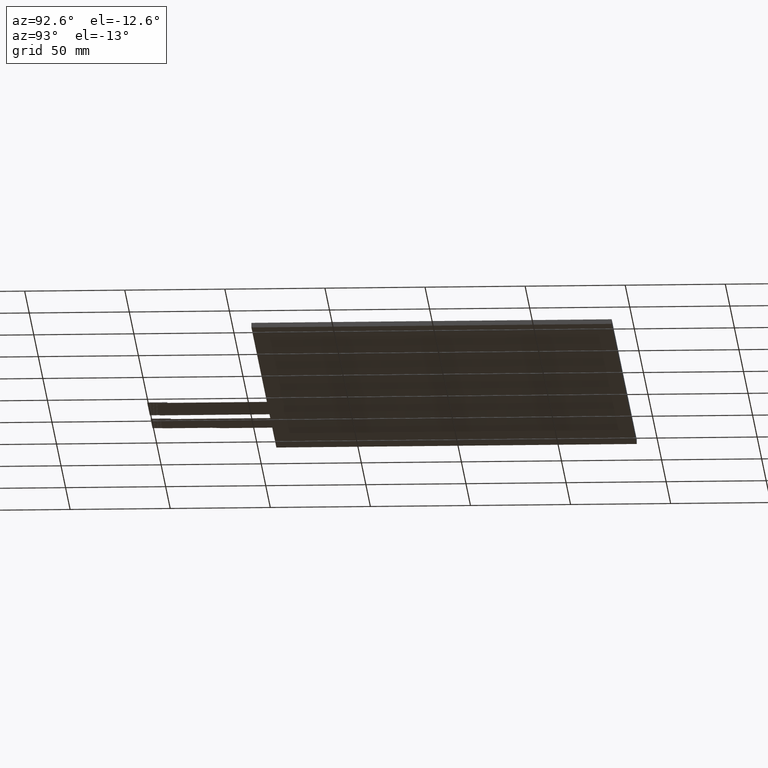
[diagram: clean part render]
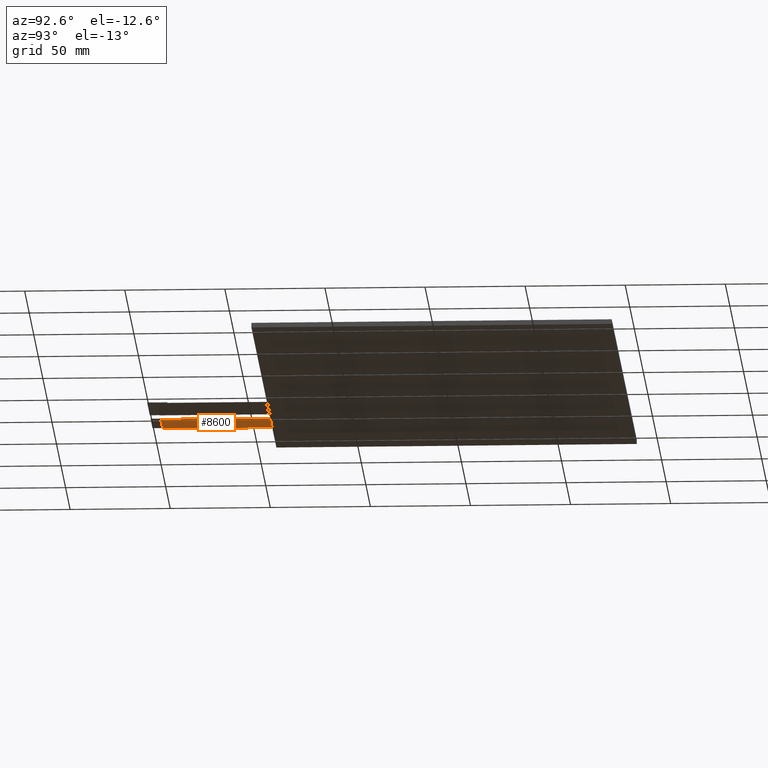
[diagram: same view with one face highlighted and labeled with its STEP entity id]
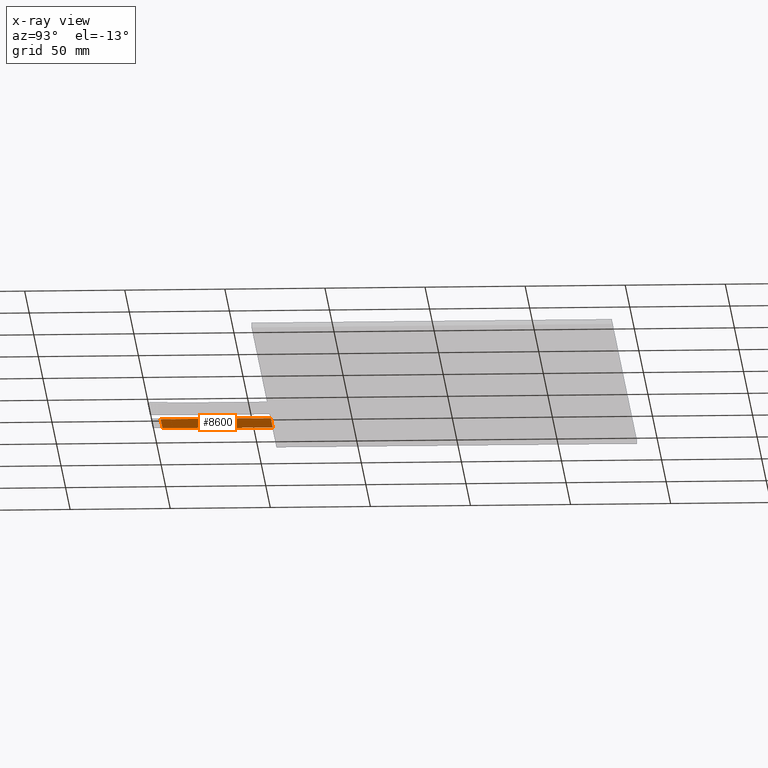
[diagram: x-ray of the same camera — body ghosted, the highlighted face saturated]
A machine part, auxiliary view. The second image highlights one B-rep face of the part: STEP entity #8600.
The next image is the same camera in x-ray: the body ghosted, the highlighted face saturated — about 0% of this face is hidden behind the body in this view.
In plain terms, the highlighted planar face has unit normal (0, 0, -1).
Its self-contained STEP definition (entity closure, byte-faithful):
#470=PLANE('',#9038);
#880=FACE_OUTER_BOUND('',#1290,.T.);
#1290=EDGE_LOOP('',(#8155,#8156,#8157,#8158,#8159,#8160));
#2458=LINE('',#13432,#3668);
#2463=LINE('',#13442,#3673);
#2488=LINE('',#13493,#3698);
#2491=LINE('',#13499,#3701);
#2494=LINE('',#13503,#3704);
#2496=LINE('',#13507,#3706);
#3668=VECTOR('',#11000,10.);
#3673=VECTOR('',#11009,10.);
#3698=VECTOR('',#11052,10.);
#3701=VECTOR('',#11057,10.);
#3704=VECTOR('',#11062,10.);
#3706=VECTOR('',#11068,10.);
#4507=VERTEX_POINT('',#13429);
#4508=VERTEX_POINT('',#13431);
#4511=VERTEX_POINT('',#13441);
#4527=VERTEX_POINT('',#13490);
#4528=VERTEX_POINT('',#13492);
#4530=VERTEX_POINT('',#13498);
#5706=EDGE_CURVE('',#4508,#4507,#2458,.T.);
#5711=EDGE_CURVE('',#4511,#4508,#2463,.T.);
#5736=EDGE_CURVE('',#4528,#4527,#2488,.T.);
#5739=EDGE_CURVE('',#4530,#4528,#2491,.T.);
#5742=EDGE_CURVE('',#4507,#4530,#2494,.T.);
#5744=EDGE_CURVE('',#4511,#4527,#2496,.T.);
#8155=ORIENTED_EDGE('',*,*,#5706,.T.);
#8156=ORIENTED_EDGE('',*,*,#5742,.T.);
#8157=ORIENTED_EDGE('',*,*,#5739,.T.);
#8158=ORIENTED_EDGE('',*,*,#5736,.T.);
#8159=ORIENTED_EDGE('',*,*,#5744,.F.);
#8160=ORIENTED_EDGE('',*,*,#5711,.T.);
#8600=ADVANCED_FACE('',(#880),#470,.T.);
#9038=AXIS2_PLACEMENT_3D('',#13506,#11066,#11067);
#11000=DIRECTION('',(-1.,0.,0.));
#11009=DIRECTION('',(4.44089209850063E-16,-1.,0.));
#11052=DIRECTION('',(0.,1.,0.));
#11057=DIRECTION('',(-0.190808995376545,0.981627183447664,0.));
#11062=DIRECTION('',(0.,1.,0.));
#11066=DIRECTION('center_axis',(0.,0.,-1.));
#11067=DIRECTION('ref_axis',(-1.,0.,0.));
#11068=DIRECTION('',(-1.,-6.45947941600091E-17,0.));
#13429=CARTESIAN_POINT('',(-96.25,-146.85,-1.2));
#13431=CARTESIAN_POINT('',(-75.75,-146.85,-1.2));
#13432=CARTESIAN_POINT('',(-81.125,-146.85,-1.2));
#13441=CARTESIAN_POINT('',(-75.75,-91.85,-1.2));
#13442=CARTESIAN_POINT('',(-75.75,-151.85,-1.2));
#13490=CARTESIAN_POINT('',(-97.25,-91.85,-1.2));
#13492=CARTESIAN_POINT('',(-97.25,-116.98544598403,-1.2));
#13493=CARTESIAN_POINT('',(-97.25,-91.85,-1.2));
#13498=CARTESIAN_POINT('',(-96.25,-122.13,-1.2));
#13499=CARTESIAN_POINT('',(-97.25,-116.98544598403,-1.2));
#13503=CARTESIAN_POINT('',(-96.25,-122.13,-1.2));
#13506=CARTESIAN_POINT('Origin',(-86.5,-121.85,-1.2));
#13507=CARTESIAN_POINT('',(25.415,-91.85,-1.2));